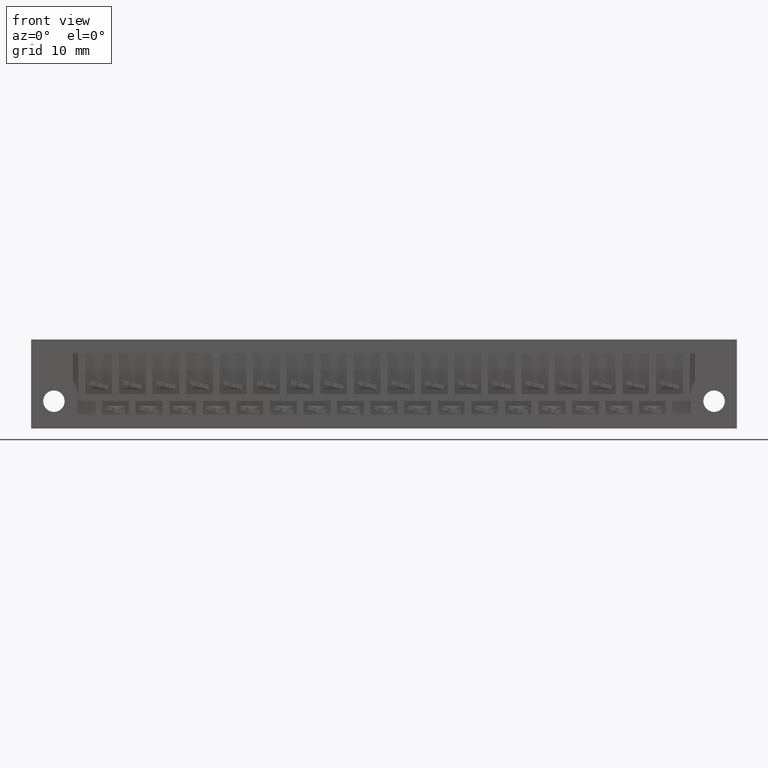
[diagram: clean part render]
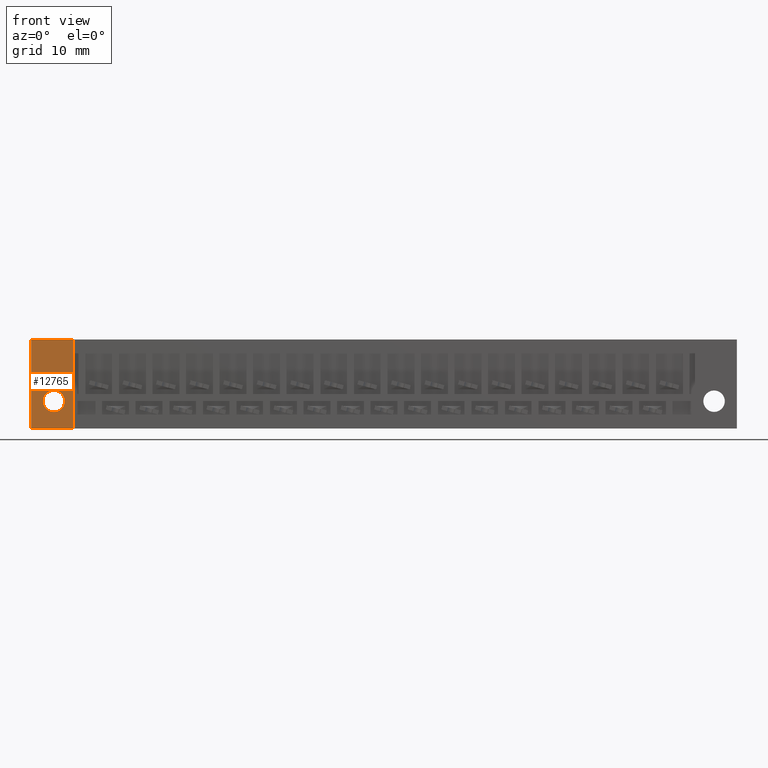
[diagram: same view with one face highlighted and labeled with its STEP entity id]
A machine part, front view. The second image highlights one B-rep face of the part: STEP entity #12765.
In plain terms, the highlighted planar face has unit normal (0, -1, 0).
Its self-contained STEP definition (entity closure, byte-faithful):
#640 = FACE_OUTER_BOUND ( 'NONE', #19174, .T. ) ;
#1029 = CARTESIAN_POINT ( 'NONE',  ( 0.0000000000000000000, 0.0000000000000000000, -0.5310000000000000300 ) ) ;
#1153 = CARTESIAN_POINT ( 'NONE',  ( 0.0000000000000000000, 0.0000000000000000000, 0.0000000000000000000 ) ) ;
#1522 = EDGE_CURVE ( 'NONE', #18778, #24546, #21920, .T. ) ;
#1776 = CARTESIAN_POINT ( 'NONE',  ( 0.1360000000000000100, 0.0000000000000000000, -0.4320000000000000000 ) ) ;
#1780 = VERTEX_POINT ( 'NONE', #15807 ) ;
#1878 = DIRECTION ( 'NONE',  ( 0.0000000000000000000, -0.0000000000000000000, -1.000000000000000000 ) ) ;
#2438 = ORIENTED_EDGE ( 'NONE', *, *, #14719, .F. ) ;
#2643 = LINE ( 'NONE', #4227, #18683 ) ;
#4148 = DIRECTION ( 'NONE',  ( 0.0000000000000000000, -1.000000000000000000, 0.0000000000000000000 ) ) ;
#4227 = CARTESIAN_POINT ( 'NONE',  ( 0.0000000000000000000, 0.0000000000000000000, 0.0000000000000000000 ) ) ;
#4244 = PLANE ( 'NONE',  #7590 ) ;
#4274 = EDGE_CURVE ( 'NONE', #16088, #15430, #2643, .T. ) ;
#6254 = CIRCLE ( 'NONE', #20964, 0.06399999999999998700 ) ;
#6984 = CARTESIAN_POINT ( 'NONE',  ( 0.2499999999999999200, 0.0000000000000000000, -0.5310000000000001400 ) ) ;
#7590 = AXIS2_PLACEMENT_3D ( 'NONE', #19446, #4148, #1878 ) ;
#7647 = DIRECTION ( 'NONE',  ( 0.0000000000000000000, 0.0000000000000000000, -1.000000000000000000 ) ) ;
#8166 = ORIENTED_EDGE ( 'NONE', *, *, #4274, .F. ) ;
#10961 = CIRCLE ( 'NONE', #18891, 0.06399999999999998700 ) ;
#11599 = LINE ( 'NONE', #12045, #17782 ) ;
#12045 = CARTESIAN_POINT ( 'NONE',  ( 0.2499999999999999200, 0.0000000000000000000, -0.5310000000000001400 ) ) ;
#12765 = ADVANCED_FACE ( 'NONE', ( #640, #18643 ), #4244, .T. ) ;
#14146 = DIRECTION ( 'NONE',  ( 0.0000000000000000000, -1.000000000000000000, 0.0000000000000000000 ) ) ;
#14326 = DIRECTION ( 'NONE',  ( -1.000000000000000000, -0.0000000000000000000, -0.0000000000000000000 ) ) ;
#14388 = VERTEX_POINT ( 'NONE', #1776 ) ;
#14719 = EDGE_CURVE ( 'NONE', #14388, #1780, #6254, .T. ) ;
#15430 = VERTEX_POINT ( 'NONE', #16959 ) ;
#15807 = CARTESIAN_POINT ( 'NONE',  ( 0.1360000000000000100, 0.0000000000000000000, -0.3040000000000000500 ) ) ;
#16088 = VERTEX_POINT ( 'NONE', #27942 ) ;
#16373 = DIRECTION ( 'NONE',  ( -0.0000000000000000000, -0.0000000000000000000, 1.000000000000000000 ) ) ;
#16388 = EDGE_CURVE ( 'NONE', #24546, #16088, #17764, .T. ) ;
#16959 = CARTESIAN_POINT ( 'NONE',  ( 0.2499999999999999200, 0.0000000000000000000, 4.969202552573302900E-028 ) ) ;
#16965 = DIRECTION ( 'NONE',  ( 0.0000000000000000000, 0.0000000000000000000, -1.000000000000000000 ) ) ;
#17074 = CARTESIAN_POINT ( 'NONE',  ( 0.0000000000000000000, 0.0000000000000000000, -0.5310000000000000300 ) ) ;
#17764 = LINE ( 'NONE', #1153, #27339 ) ;
#17782 = VECTOR ( 'NONE', #23057, 39.37007874015748100 ) ;
#17909 = ORIENTED_EDGE ( 'NONE', *, *, #1522, .F. ) ;
#18643 = FACE_BOUND ( 'NONE', #21910, .T. ) ;
#18683 = VECTOR ( 'NONE', #21022, 39.37007874015748100 ) ;
#18778 = VERTEX_POINT ( 'NONE', #6984 ) ;
#18891 = AXIS2_PLACEMENT_3D ( 'NONE', #27225, #14146, #7647 ) ;
#19046 = DIRECTION ( 'NONE',  ( 0.0000000000000000000, -1.000000000000000000, 0.0000000000000000000 ) ) ;
#19174 = EDGE_LOOP ( 'NONE', ( #28209, #8166, #20080, #17909 ) ) ;
#19446 = CARTESIAN_POINT ( 'NONE',  ( 0.0000000000000000000, 0.0000000000000000000, -0.5310000000000000300 ) ) ;
#20080 = ORIENTED_EDGE ( 'NONE', *, *, #16388, .F. ) ;
#20964 = AXIS2_PLACEMENT_3D ( 'NONE', #25481, #19046, #16965 ) ;
#21022 = DIRECTION ( 'NONE',  ( 1.000000000000000000, 0.0000000000000000000, 0.0000000000000000000 ) ) ;
#21073 = EDGE_CURVE ( 'NONE', #1780, #14388, #10961, .T. ) ;
#21910 = EDGE_LOOP ( 'NONE', ( #2438, #22248 ) ) ;
#21920 = LINE ( 'NONE', #1029, #22946 ) ;
#22248 = ORIENTED_EDGE ( 'NONE', *, *, #21073, .F. ) ;
#22946 = VECTOR ( 'NONE', #14326, 39.37007874015748100 ) ;
#23057 = DIRECTION ( 'NONE',  ( -0.0000000000000000000, -0.0000000000000000000, -1.000000000000000000 ) ) ;
#23644 = EDGE_CURVE ( 'NONE', #15430, #18778, #11599, .T. ) ;
#24546 = VERTEX_POINT ( 'NONE', #17074 ) ;
#25481 = CARTESIAN_POINT ( 'NONE',  ( 0.1360000000000000100, 0.0000000000000000000, -0.3679999999999999900 ) ) ;
#27225 = CARTESIAN_POINT ( 'NONE',  ( 0.1360000000000000100, 0.0000000000000000000, -0.3679999999999999900 ) ) ;
#27339 = VECTOR ( 'NONE', #16373, 39.37007874015748100 ) ;
#27942 = CARTESIAN_POINT ( 'NONE',  ( 0.0000000000000000000, 0.0000000000000000000, 0.0000000000000000000 ) ) ;
#28209 = ORIENTED_EDGE ( 'NONE', *, *, #23644, .F. ) ;